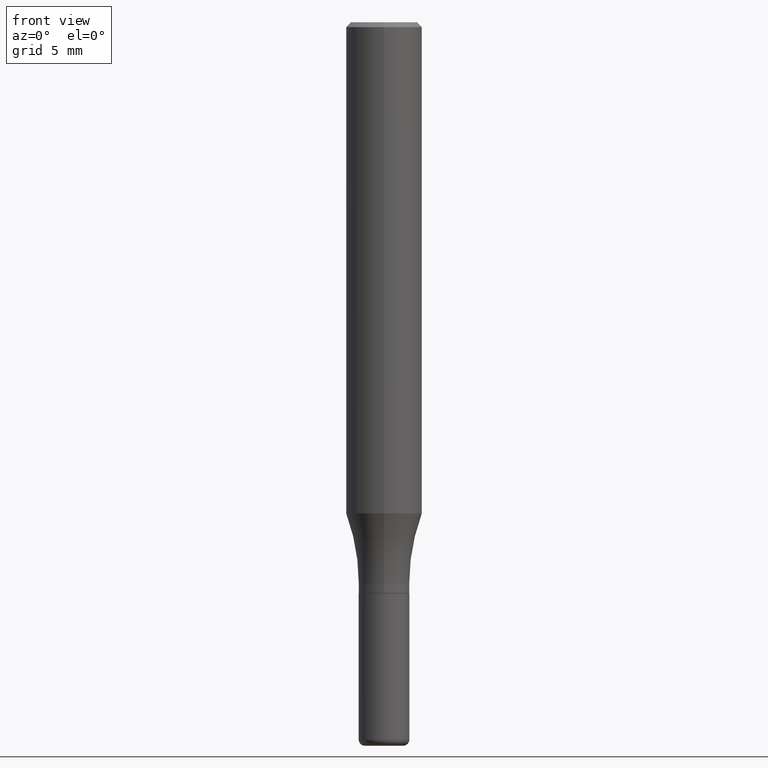
[diagram: clean part render]
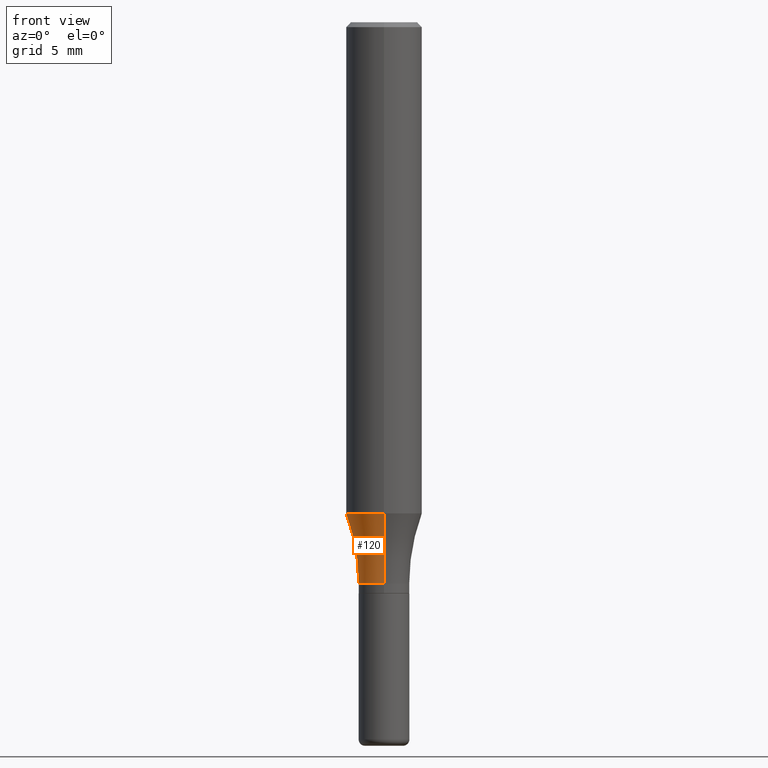
[diagram: same view with one face highlighted and labeled with its STEP entity id]
A machine part, front view. The second image highlights one B-rep face of the part: STEP entity #120.
In plain terms, the highlighted toroidal blend (fillet) surface has major radius 17.8753 mm and minor (blend) radius 15.875 mm.
Its self-contained STEP definition (entity closure, byte-faithful):
#17 = AXIS2_PLACEMENT_3D ( 'NONE', #36, #79, #227 ) ;
#35 = CARTESIAN_POINT ( 'NONE',  ( 3.724768054275150993E-29, -5.320119884490468606E-15, -1.523436220366273686 ) ) ;
#36 = CARTESIAN_POINT ( 'NONE',  ( 5.000444502911747562E-15, 0.7037499999999939915, -1.741700000000002690 ) ) ;
#55 = ORIENTED_EDGE ( 'NONE', *, *, #85, .F. ) ;
#73 = TOROIDAL_SURFACE ( 'NONE', #141, 0.7037500000000000977, 0.6250000000000000000 ) ;
#79 = DIRECTION ( 'NONE',  ( 1.000000000000000000, -7.105427357601001070E-15, 4.926324115996358124E-29 ) ) ;
#84 = DIRECTION ( 'NONE',  ( -6.982962677686266711E-15, -1.000000000000000000, 0.000000000000000000 ) ) ;
#85 = EDGE_CURVE ( 'NONE', #496, #127, #302, .T. ) ;
#89 = CIRCLE ( 'NONE', #225, 0.07875000000000008382 ) ;
#90 = CARTESIAN_POINT ( 'NONE',  ( -4.914259984421667441E-15, -0.7037500000000062039, -1.741699999999997805 ) ) ;
#106 = CIRCLE ( 'NONE', #17, 0.6249999999999998890 ) ;
#112 = DIRECTION ( 'NONE',  ( -6.982962677686265133E-15, -1.000000000000000000, 3.469013325287949743E-15 ) ) ;
#120 = ADVANCED_FACE ( 'NONE', ( #298 ), #73, .F. ) ;
#127 = VERTEX_POINT ( 'NONE', #137 ) ;
#137 = CARTESIAN_POINT ( 'NONE',  ( -8.246878922347104959E-16, -0.1181000000000053535, -1.523436220366273020 ) ) ;
#141 = AXIS2_PLACEMENT_3D ( 'NONE', #250, #413, #177 ) ;
#145 = ORIENTED_EDGE ( 'NONE', *, *, #231, .F. ) ;
#147 = EDGE_LOOP ( 'NONE', ( #55, #493, #336, #145 ) ) ;
#177 = DIRECTION ( 'NONE',  ( -6.982962677686266711E-15, -1.000000000000000000, 3.492184190823146293E-15 ) ) ;
#198 = VERTEX_POINT ( 'NONE', #466 ) ;
#201 = DIRECTION ( 'NONE',  ( -2.444978007270708003E-29, 3.492184190823146687E-15, 1.000000000000000000 ) ) ;
#225 = AXIS2_PLACEMENT_3D ( 'NONE', #516, #479, #112 ) ;
#227 = DIRECTION ( 'NONE',  ( 7.105427357601001859E-15, 1.000000000000000000, 0.000000000000000000 ) ) ;
#231 = EDGE_CURVE ( 'NONE', #127, #198, #269, .T. ) ;
#250 = CARTESIAN_POINT ( 'NONE',  ( 4.259273019732652912E-29, -6.081113047863106923E-15, -1.741700000000000248 ) ) ;
#269 = CIRCLE ( 'NONE', #483, 0.6250000000000001110 ) ;
#277 = EDGE_CURVE ( 'NONE', #519, #198, #89, .T. ) ;
#298 = FACE_OUTER_BOUND ( 'NONE', #147, .T. ) ;
#302 = CIRCLE ( 'NONE', #452, 0.1181000000000000383 ) ;
#322 = DIRECTION ( 'NONE',  ( -1.000000000000000000, 6.982962677686265922E-15, -4.883557194083112340E-29 ) ) ;
#336 = ORIENTED_EDGE ( 'NONE', *, *, #277, .T. ) ;
#352 = EDGE_CURVE ( 'NONE', #496, #519, #106, .T. ) ;
#412 = CARTESIAN_POINT ( 'NONE',  ( 6.993516876719194216E-16, 0.07874999999999400535, -1.741700000000000470 ) ) ;
#413 = DIRECTION ( 'NONE',  ( -2.444978007270708003E-29, 3.492184190823146687E-15, 1.000000000000000000 ) ) ;
#445 = DIRECTION ( 'NONE',  ( -6.982962677686265922E-15, -1.000000000000000000, 4.626330217890367758E-15 ) ) ;
#452 = AXIS2_PLACEMENT_3D ( 'NONE', #35, #201, #445 ) ;
#466 = CARTESIAN_POINT ( 'NONE',  ( -5.499083108677514374E-16, -0.07875000000000616229, -1.741699999999999804 ) ) ;
#479 = DIRECTION ( 'NONE',  ( -2.444978007270708003E-29, 3.492184190823146687E-15, 1.000000000000000000 ) ) ;
#483 = AXIS2_PLACEMENT_3D ( 'NONE', #90, #322, #84 ) ;
#493 = ORIENTED_EDGE ( 'NONE', *, *, #352, .T. ) ;
#496 = VERTEX_POINT ( 'NONE', #500 ) ;
#500 = CARTESIAN_POINT ( 'NONE',  ( 8.391509709327157666E-16, 0.1180999999999946398, -1.523436220366274130 ) ) ;
#516 = CARTESIAN_POINT ( 'NONE',  ( 4.258418195263392864E-29, -6.082337205156674734E-15, -1.741700000000000248 ) ) ;
#519 = VERTEX_POINT ( 'NONE', #412 ) ;